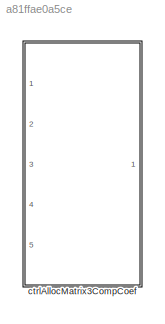
MODEL slx_a81ffae0a5ce
KIND library
CONFIG AbsTol = auto
CONFIG EnableMultiTasking = off
CONFIG FixedStep = auto
CONFIG MaxStep = auto
CONFIG MinStep = auto
CONFIG RelTol = 1e-3
CONFIG SampleTimeConstraint = Unconstrained
CONFIG SolverName = VariableStepAuto
CONFIG StartTime = 0.0
CONFIG StopTime = 10.0
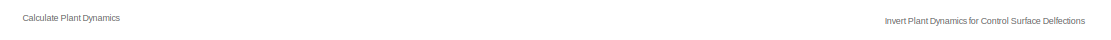
[diagram: ctrlAllocMatrix3CompCoef - part 1/2, top center region]
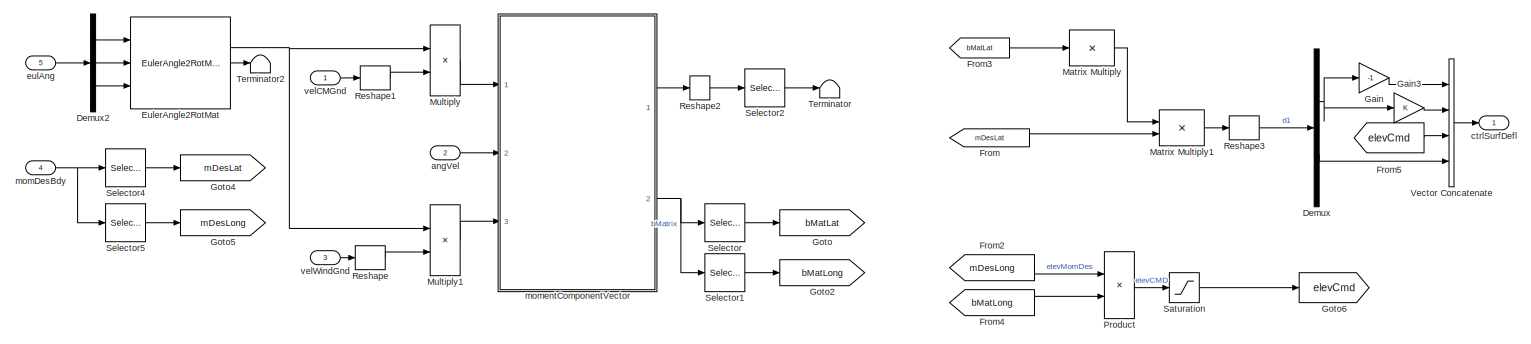
[diagram: ctrlAllocMatrix3CompCoef - part 2/2, most of the canvas]
BLOCK [SubSystem] ctrlAllocMatrix3CompCoef
  MinAlgLoopOccurrences = on
  Ports = [5, 1]
  RequestExecContextInheritance = off
BLOCK [Demux] ctrlAllocMatrix3CompCoef/Demux
  Outputs = 2
  Ports = [1, 2]
BLOCK [Demux] ctrlAllocMatrix3CompCoef/Demux2
  Outputs = 3
  Ports = [1, 3]
BLOCK [Reference] ctrlAllocMatrix3CompCoef/EulerAngle2RotMat  REF=eulAng2RotMat_ul/EulerAngle2RotMat
  Ports = [3, 2]
  SourceBlock = eulAng2RotMat_ul/EulerAngle2RotMat
  SourceType = SubSystem
BLOCK [From] ctrlAllocMatrix3CompCoef/From
  GotoTag = mDesLat
BLOCK [From] ctrlAllocMatrix3CompCoef/From2
  GotoTag = mDesLong
BLOCK [From] ctrlAllocMatrix3CompCoef/From3
  GotoTag = bMatLat
BLOCK [From] ctrlAllocMatrix3CompCoef/From4
  GotoTag = bMatLong
BLOCK [From] ctrlAllocMatrix3CompCoef/From5
  GotoTag = elevCmd
BLOCK [Gain] ctrlAllocMatrix3CompCoef/Gain
  Gain = -1
BLOCK [Gain] ctrlAllocMatrix3CompCoef/Gain3
BLOCK [Goto] ctrlAllocMatrix3CompCoef/Goto
  GotoTag = bMatLat
BLOCK [Goto] ctrlAllocMatrix3CompCoef/Goto2
  GotoTag = bMatLong
BLOCK [Goto] ctrlAllocMatrix3CompCoef/Goto4
  GotoTag = mDesLat
BLOCK [Goto] ctrlAllocMatrix3CompCoef/Goto5
  GotoTag = mDesLong
BLOCK [Goto] ctrlAllocMatrix3CompCoef/Goto6
  GotoTag = elevCmd
BLOCK [Product] ctrlAllocMatrix3CompCoef/Matrix Multiply
  Inputs = /
  Multiplication = Matrix(*)
  Ports = [1, 1]
BLOCK [Product] ctrlAllocMatrix3CompCoef/Matrix Multiply1
  Multiplication = Matrix(*)
  Ports = [2, 1]
BLOCK [Product] ctrlAllocMatrix3CompCoef/Multiply
  Multiplication = Matrix(*)
  Ports = [2, 1]
BLOCK [Product] ctrlAllocMatrix3CompCoef/Multiply1
  Multiplication = Matrix(*)
  Ports = [2, 1]
BLOCK [Product] ctrlAllocMatrix3CompCoef/Product
  Inputs = */
  Ports = [2, 1]
BLOCK [Reshape] ctrlAllocMatrix3CompCoef/Reshape
  OutputDimensionality = Column vector (2-D)
  Ports = [1, 1]
BLOCK [Reshape] ctrlAllocMatrix3CompCoef/Reshape1
  OutputDimensionality = Column vector (2-D)
  Ports = [1, 1]
BLOCK [Reshape] ctrlAllocMatrix3CompCoef/Reshape2
  OutputDimensionality = Column vector (2-D)
  Ports = [1, 1]
BLOCK [Reshape] ctrlAllocMatrix3CompCoef/Reshape3
  Ports = [1, 1]
BLOCK [Saturate] ctrlAllocMatrix3CompCoef/Saturation
  LowerLimit = -30
  UpperLimit = 30
BLOCK [Selector] ctrlAllocMatrix3CompCoef/Selector
  IndexOptions = Index vector (dialog),Index vector (dialog)
  Indices = [1 3],[1 3]
  InputPortWidth = 3
  NumberOfDimensions = 2
  OutputSizes = 1,1
  Ports = [1, 1]
BLOCK [Selector] ctrlAllocMatrix3CompCoef/Selector1
  IndexOptions = Index vector (dialog),Index vector (dialog)
  Indices = 2,2
  InputPortWidth = 3
  NumberOfDimensions = 2
  OutputSizes = 1,1
  Ports = [1, 1]
BLOCK [Selector] ctrlAllocMatrix3CompCoef/Selector2
  IndexOptions = Index vector (dialog)
  Indices = [1 3]
  InputPortWidth = 3
  OutputSizes = 1
  Ports = [1, 1]
BLOCK [Selector] ctrlAllocMatrix3CompCoef/Selector4
  IndexOptions = Index vector (dialog)
  Indices = [1 3]
  InputPortWidth = 3
  OutputSizes = 1
  Ports = [1, 1]
BLOCK [Selector] ctrlAllocMatrix3CompCoef/Selector5
  IndexOptions = Index vector (dialog)
  Indices = 2
  InputPortWidth = 3
  OutputSizes = 1
  Ports = [1, 1]
BLOCK [Terminator] ctrlAllocMatrix3CompCoef/Terminator
BLOCK [Terminator] ctrlAllocMatrix3CompCoef/Terminator2
BLOCK [Concatenate] ctrlAllocMatrix3CompCoef/Vector Concatenate
  NumInputs = 4
  Ports = [4, 1]
BLOCK [Inport] ctrlAllocMatrix3CompCoef/angVel
  Port = 2
BLOCK [Outport] ctrlAllocMatrix3CompCoef/ctrlSurfDefl
  VectorParamsAs1DForOutWhenUnconnected = off
BLOCK [Inport] ctrlAllocMatrix3CompCoef/eulAng
  Port = 5
BLOCK [Inport] ctrlAllocMatrix3CompCoef/momDesBdy
  Port = 4
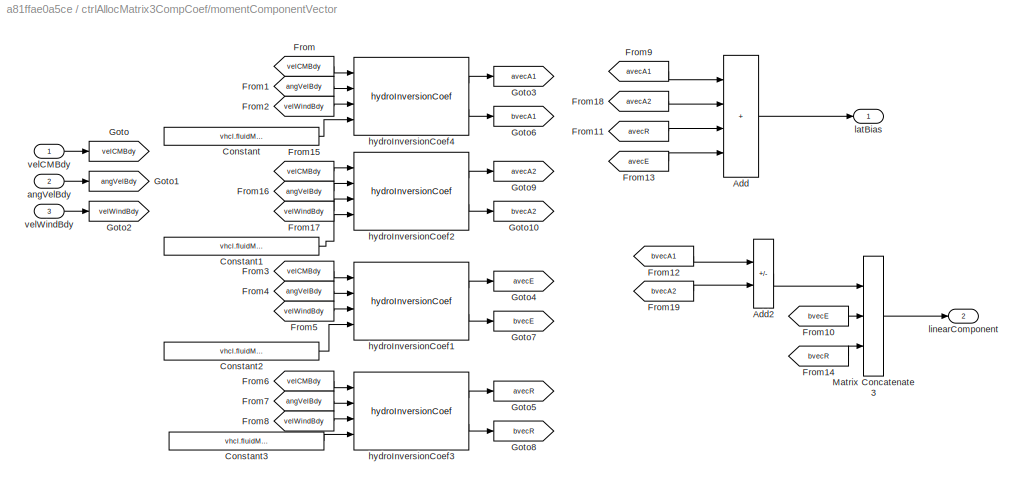
BLOCK [SubSystem] ctrlAllocMatrix3CompCoef/momentComponentVector
  Ports = [3, 2]
  RequestExecContextInheritance = off
BLOCK [Sum] ctrlAllocMatrix3CompCoef/momentComponentVector/Add
  IconShape = rectangular
  Inputs = ++++
  Ports = [4, 1]
BLOCK [Sum] ctrlAllocMatrix3CompCoef/momentComponentVector/Add2
  IconShape = rectangular
  Inputs = -+
  Ports = [2, 1]
BLOCK [Constant] ctrlAllocMatrix3CompCoef/momentComponentVector/Constant
  Value = vhcl.fluidMomentArms.Value(:,1)
BLOCK [Constant] ctrlAllocMatrix3CompCoef/momentComponentVector/Constant1
  Value = vhcl.fluidMomentArms.Value(:,2)
BLOCK [Constant] ctrlAllocMatrix3CompCoef/momentComponentVector/Constant2
  Value = vhcl.fluidMomentArms.Value(:,3)
BLOCK [Constant] ctrlAllocMatrix3CompCoef/momentComponentVector/Constant3
  Value = vhcl.fluidMomentArms.Value(:,4)
BLOCK [From] ctrlAllocMatrix3CompCoef/momentComponentVector/From
  GotoTag = velCMBdy
BLOCK [From] ctrlAllocMatrix3CompCoef/momentComponentVector/From1
  GotoTag = angVelBdy
BLOCK [From] ctrlAllocMatrix3CompCoef/momentComponentVector/From10
  GotoTag = bvecE
BLOCK [From] ctrlAllocMatrix3CompCoef/momentComponentVector/From11
  GotoTag = avecR
BLOCK [From] ctrlAllocMatrix3CompCoef/momentComponentVector/From12
  GotoTag = bvecA1
BLOCK [From] ctrlAllocMatrix3CompCoef/momentComponentVector/From13
  GotoTag = avecE
BLOCK [From] ctrlAllocMatrix3CompCoef/momentComponentVector/From14
  GotoTag = bvecR
BLOCK [From] ctrlAllocMatrix3CompCoef/momentComponentVector/From15
  GotoTag = velCMBdy
BLOCK [From] ctrlAllocMatrix3CompCoef/momentComponentVector/From16
  GotoTag = angVelBdy
BLOCK [From] ctrlAllocMatrix3CompCoef/momentComponentVector/From17
  GotoTag = velWindBdy
BLOCK [From] ctrlAllocMatrix3CompCoef/momentComponentVector/From18
  GotoTag = avecA2
BLOCK [From] ctrlAllocMatrix3CompCoef/momentComponentVector/From19
  GotoTag = bvecA2
BLOCK [From] ctrlAllocMatrix3CompCoef/momentComponentVector/From2
  GotoTag = velWindBdy
BLOCK [From] ctrlAllocMatrix3CompCoef/momentComponentVector/From3
  GotoTag = velCMBdy
BLOCK [From] ctrlAllocMatrix3CompCoef/momentComponentVector/From4
  GotoTag = angVelBdy
BLOCK [From] ctrlAllocMatrix3CompCoef/momentComponentVector/From5
  GotoTag = velWindBdy
BLOCK [From] ctrlAllocMatrix3CompCoef/momentComponentVector/From6
  GotoTag = velCMBdy
BLOCK [From] ctrlAllocMatrix3CompCoef/momentComponentVector/From7
  GotoTag = angVelBdy
BLOCK [From] ctrlAllocMatrix3CompCoef/momentComponentVector/From8
  GotoTag = velWindBdy
BLOCK [From] ctrlAllocMatrix3CompCoef/momentComponentVector/From9
  GotoTag = avecA1
BLOCK [Goto] ctrlAllocMatrix3CompCoef/momentComponentVector/Goto
  GotoTag = velCMBdy
BLOCK [Goto] ctrlAllocMatrix3CompCoef/momentComponentVector/Goto1
  GotoTag = angVelBdy
BLOCK [Goto] ctrlAllocMatrix3CompCoef/momentComponentVector/Goto10
  GotoTag = bvecA2
BLOCK [Goto] ctrlAllocMatrix3CompCoef/momentComponentVector/Goto2
  GotoTag = velWindBdy
BLOCK [Goto] ctrlAllocMatrix3CompCoef/momentComponentVector/Goto3
  GotoTag = avecA1
BLOCK [Goto] ctrlAllocMatrix3CompCoef/momentComponentVector/Goto4
  GotoTag = avecE
BLOCK [Goto] ctrlAllocMatrix3CompCoef/momentComponentVector/Goto5
  GotoTag = avecR
BLOCK [Goto] ctrlAllocMatrix3CompCoef/momentComponentVector/Goto6
  GotoTag = bvecA1
BLOCK [Goto] ctrlAllocMatrix3CompCoef/momentComponentVector/Goto7
  GotoTag = bvecE
BLOCK [Goto] ctrlAllocMatrix3CompCoef/momentComponentVector/Goto8
  GotoTag = bvecR
BLOCK [Goto] ctrlAllocMatrix3CompCoef/momentComponentVector/Goto9
  GotoTag = avecA2
BLOCK [Concatenate] ctrlAllocMatrix3CompCoef/momentComponentVector/Matrix Concatenate3
  ConcatenateDimension = 2
  Mode = Multidimensional array
  NumInputs = 3
  Ports = [3, 1]
BLOCK [Inport] ctrlAllocMatrix3CompCoef/momentComponentVector/angVelBdy
  Port = 2
BLOCK [Reference] ctrlAllocMatrix3CompCoef/momentComponentVector/hydroInversionCoef1  REF=hydroInversionCoef_cl/hydroInversionCoef
  Ports = [4, 2]
  SourceBlock = hydroInversionCoef_cl/hydroInversionCoef
BLOCK [Reference] ctrlAllocMatrix3CompCoef/momentComponentVector/hydroInversionCoef2  REF=hydroInversionCoef_cl/hydroInversionCoef
  Ports = [4, 2]
  SourceBlock = hydroInversionCoef_cl/hydroInversionCoef
BLOCK [Reference] ctrlAllocMatrix3CompCoef/momentComponentVector/hydroInversionCoef3  REF=hydroInversionCoef_cl/hydroInversionCoef
  Ports = [4, 2]
  SourceBlock = hydroInversionCoef_cl/hydroInversionCoef
BLOCK [Reference] ctrlAllocMatrix3CompCoef/momentComponentVector/hydroInversionCoef4  REF=hydroInversionCoef_cl/hydroInversionCoef
  Ports = [4, 2]
  SourceBlock = hydroInversionCoef_cl/hydroInversionCoef
BLOCK [Outport] ctrlAllocMatrix3CompCoef/momentComponentVector/latBias
BLOCK [Outport] ctrlAllocMatrix3CompCoef/momentComponentVector/linearComponent
  Port = 2
BLOCK [Inport] ctrlAllocMatrix3CompCoef/momentComponentVector/velCMBdy
BLOCK [Inport] ctrlAllocMatrix3CompCoef/momentComponentVector/velWindBdy
  Port = 3
BLOCK [Inport] ctrlAllocMatrix3CompCoef/velCMGnd
BLOCK [Inport] ctrlAllocMatrix3CompCoef/velWindGnd
  Port = 3
ANNOTATION ctrlAllocMatrix3CompCoef: Calculate Plant Dynamics
ANNOTATION ctrlAllocMatrix3CompCoef: Invert Plant Dynamics for Control Surface Delfections
LINE ctrlAllocMatrix3CompCoef/Demux2:1 -> ctrlAllocMatrix3CompCoef/EulerAngle2RotMat:1
LINE ctrlAllocMatrix3CompCoef/Demux2:2 -> ctrlAllocMatrix3CompCoef/EulerAngle2RotMat:2
LINE ctrlAllocMatrix3CompCoef/Demux2:3 -> ctrlAllocMatrix3CompCoef/EulerAngle2RotMat:3
NET ctrlAllocMatrix3CompCoef/Demux:1 -> ctrlAllocMatrix3CompCoef/Gain3:1, ctrlAllocMatrix3CompCoef/Gain:1
LINE ctrlAllocMatrix3CompCoef/Demux:2 -> ctrlAllocMatrix3CompCoef/Vector Concatenate:4
NET ctrlAllocMatrix3CompCoef/EulerAngle2RotMat:1 -> ctrlAllocMatrix3CompCoef/Multiply1:1, ctrlAllocMatrix3CompCoef/Multiply:1
LINE ctrlAllocMatrix3CompCoef/EulerAngle2RotMat:2 -> ctrlAllocMatrix3CompCoef/Terminator2:1
LINE ctrlAllocMatrix3CompCoef/From2:1 -> ctrlAllocMatrix3CompCoef/Product:1
LINE ctrlAllocMatrix3CompCoef/From3:1 -> ctrlAllocMatrix3CompCoef/Matrix Multiply:1
LINE ctrlAllocMatrix3CompCoef/From4:1 -> ctrlAllocMatrix3CompCoef/Product:2
LINE ctrlAllocMatrix3CompCoef/From5:1 -> ctrlAllocMatrix3CompCoef/Vector Concatenate:3
LINE ctrlAllocMatrix3CompCoef/From:1 -> ctrlAllocMatrix3CompCoef/Matrix Multiply1:2
LINE ctrlAllocMatrix3CompCoef/Gain3:1 -> ctrlAllocMatrix3CompCoef/Vector Concatenate:2
LINE ctrlAllocMatrix3CompCoef/Gain:1 -> ctrlAllocMatrix3CompCoef/Vector Concatenate:1
LINE ctrlAllocMatrix3CompCoef/Matrix Multiply1:1 -> ctrlAllocMatrix3CompCoef/Reshape3:1
LINE ctrlAllocMatrix3CompCoef/Matrix Multiply:1 -> ctrlAllocMatrix3CompCoef/Matrix Multiply1:1
LINE ctrlAllocMatrix3CompCoef/Multiply1:1 -> ctrlAllocMatrix3CompCoef/momentComponentVector:3
LINE ctrlAllocMatrix3CompCoef/Multiply:1 -> ctrlAllocMatrix3CompCoef/momentComponentVector:1
LINE ctrlAllocMatrix3CompCoef/Product:1 -> ctrlAllocMatrix3CompCoef/Saturation:1
LINE ctrlAllocMatrix3CompCoef/Reshape1:1 -> ctrlAllocMatrix3CompCoef/Multiply:2
LINE ctrlAllocMatrix3CompCoef/Reshape2:1 -> ctrlAllocMatrix3CompCoef/Selector2:1
LINE ctrlAllocMatrix3CompCoef/Reshape3:1 -> ctrlAllocMatrix3CompCoef/Demux:1
LINE ctrlAllocMatrix3CompCoef/Reshape:1 -> ctrlAllocMatrix3CompCoef/Multiply1:2
LINE ctrlAllocMatrix3CompCoef/Saturation:1 -> ctrlAllocMatrix3CompCoef/Goto6:1
LINE ctrlAllocMatrix3CompCoef/Selector1:1 -> ctrlAllocMatrix3CompCoef/Goto2:1
LINE ctrlAllocMatrix3CompCoef/Selector2:1 -> ctrlAllocMatrix3CompCoef/Terminator:1
LINE ctrlAllocMatrix3CompCoef/Selector4:1 -> ctrlAllocMatrix3CompCoef/Goto4:1
LINE ctrlAllocMatrix3CompCoef/Selector5:1 -> ctrlAllocMatrix3CompCoef/Goto5:1
LINE ctrlAllocMatrix3CompCoef/Selector:1 -> ctrlAllocMatrix3CompCoef/Goto:1
LINE ctrlAllocMatrix3CompCoef/Vector Concatenate:1 -> ctrlAllocMatrix3CompCoef/ctrlSurfDefl:1
LINE ctrlAllocMatrix3CompCoef/angVel:1 -> ctrlAllocMatrix3CompCoef/momentComponentVector:2
LINE ctrlAllocMatrix3CompCoef/eulAng:1 -> ctrlAllocMatrix3CompCoef/Demux2:1
NET ctrlAllocMatrix3CompCoef/momDesBdy:1 -> ctrlAllocMatrix3CompCoef/Selector4:1, ctrlAllocMatrix3CompCoef/Selector5:1
LINE ctrlAllocMatrix3CompCoef/momentComponentVector/Add2:1 -> ctrlAllocMatrix3CompCoef/momentComponentVector/Matrix Concatenate3:1
LINE ctrlAllocMatrix3CompCoef/momentComponentVector/Add:1 -> ctrlAllocMatrix3CompCoef/momentComponentVector/latBias:1
LINE ctrlAllocMatrix3CompCoef/momentComponentVector/Constant1:1 -> ctrlAllocMatrix3CompCoef/momentComponentVector/hydroInversionCoef2:4
LINE ctrlAllocMatrix3CompCoef/momentComponentVector/Constant2:1 -> ctrlAllocMatrix3CompCoef/momentComponentVector/hydroInversionCoef1:4
LINE ctrlAllocMatrix3CompCoef/momentComponentVector/Constant3:1 -> ctrlAllocMatrix3CompCoef/momentComponentVector/hydroInversionCoef3:4
LINE ctrlAllocMatrix3CompCoef/momentComponentVector/Constant:1 -> ctrlAllocMatrix3CompCoef/momentComponentVector/hydroInversionCoef4:4
LINE ctrlAllocMatrix3CompCoef/momentComponentVector/From10:1 -> ctrlAllocMatrix3CompCoef/momentComponentVector/Matrix Concatenate3:2
LINE ctrlAllocMatrix3CompCoef/momentComponentVector/From11:1 -> ctrlAllocMatrix3CompCoef/momentComponentVector/Add:3
LINE ctrlAllocMatrix3CompCoef/momentComponentVector/From12:1 -> ctrlAllocMatrix3CompCoef/momentComponentVector/Add2:1
LINE ctrlAllocMatrix3CompCoef/momentComponentVector/From13:1 -> ctrlAllocMatrix3CompCoef/momentComponentVector/Add:4
LINE ctrlAllocMatrix3CompCoef/momentComponentVector/From14:1 -> ctrlAllocMatrix3CompCoef/momentComponentVector/Matrix Concatenate3:3
LINE ctrlAllocMatrix3CompCoef/momentComponentVector/From15:1 -> ctrlAllocMatrix3CompCoef/momentComponentVector/hydroInversionCoef2:1
LINE ctrlAllocMatrix3CompCoef/momentComponentVector/From16:1 -> ctrlAllocMatrix3CompCoef/momentComponentVector/hydroInversionCoef2:2
LINE ctrlAllocMatrix3CompCoef/momentComponentVector/From17:1 -> ctrlAllocMatrix3CompCoef/momentComponentVector/hydroInversionCoef2:3
LINE ctrlAllocMatrix3CompCoef/momentComponentVector/From18:1 -> ctrlAllocMatrix3CompCoef/momentComponentVector/Add:2
LINE ctrlAllocMatrix3CompCoef/momentComponentVector/From19:1 -> ctrlAllocMatrix3CompCoef/momentComponentVector/Add2:2
LINE ctrlAllocMatrix3CompCoef/momentComponentVector/From1:1 -> ctrlAllocMatrix3CompCoef/momentComponentVector/hydroInversionCoef4:2
LINE ctrlAllocMatrix3CompCoef/momentComponentVector/From2:1 -> ctrlAllocMatrix3CompCoef/momentComponentVector/hydroInversionCoef4:3
LINE ctrlAllocMatrix3CompCoef/momentComponentVector/From3:1 -> ctrlAllocMatrix3CompCoef/momentComponentVector/hydroInversionCoef1:1
LINE ctrlAllocMatrix3CompCoef/momentComponentVector/From4:1 -> ctrlAllocMatrix3CompCoef/momentComponentVector/hydroInversionCoef1:2
LINE ctrlAllocMatrix3CompCoef/momentComponentVector/From5:1 -> ctrlAllocMatrix3CompCoef/momentComponentVector/hydroInversionCoef1:3
LINE ctrlAllocMatrix3CompCoef/momentComponentVector/From6:1 -> ctrlAllocMatrix3CompCoef/momentComponentVector/hydroInversionCoef3:1
LINE ctrlAllocMatrix3CompCoef/momentComponentVector/From7:1 -> ctrlAllocMatrix3CompCoef/momentComponentVector/hydroInversionCoef3:2
LINE ctrlAllocMatrix3CompCoef/momentComponentVector/From8:1 -> ctrlAllocMatrix3CompCoef/momentComponentVector/hydroInversionCoef3:3
LINE ctrlAllocMatrix3CompCoef/momentComponentVector/From9:1 -> ctrlAllocMatrix3CompCoef/momentComponentVector/Add:1
LINE ctrlAllocMatrix3CompCoef/momentComponentVector/From:1 -> ctrlAllocMatrix3CompCoef/momentComponentVector/hydroInversionCoef4:1
LINE ctrlAllocMatrix3CompCoef/momentComponentVector/Matrix Concatenate3:1 -> ctrlAllocMatrix3CompCoef/momentComponentVector/linearComponent:1
LINE ctrlAllocMatrix3CompCoef/momentComponentVector/angVelBdy:1 -> ctrlAllocMatrix3CompCoef/momentComponentVector/Goto1:1
LINE ctrlAllocMatrix3CompCoef/momentComponentVector/hydroInversionCoef1:1 -> ctrlAllocMatrix3CompCoef/momentComponentVector/Goto4:1
LINE ctrlAllocMatrix3CompCoef/momentComponentVector/hydroInversionCoef1:2 -> ctrlAllocMatrix3CompCoef/momentComponentVector/Goto7:1
LINE ctrlAllocMatrix3CompCoef/momentComponentVector/hydroInversionCoef2:1 -> ctrlAllocMatrix3CompCoef/momentComponentVector/Goto9:1
LINE ctrlAllocMatrix3CompCoef/momentComponentVector/hydroInversionCoef2:2 -> ctrlAllocMatrix3CompCoef/momentComponentVector/Goto10:1
LINE ctrlAllocMatrix3CompCoef/momentComponentVector/hydroInversionCoef3:1 -> ctrlAllocMatrix3CompCoef/momentComponentVector/Goto5:1
LINE ctrlAllocMatrix3CompCoef/momentComponentVector/hydroInversionCoef3:2 -> ctrlAllocMatrix3CompCoef/momentComponentVector/Goto8:1
LINE ctrlAllocMatrix3CompCoef/momentComponentVector/hydroInversionCoef4:1 -> ctrlAllocMatrix3CompCoef/momentComponentVector/Goto3:1
LINE ctrlAllocMatrix3CompCoef/momentComponentVector/hydroInversionCoef4:2 -> ctrlAllocMatrix3CompCoef/momentComponentVector/Goto6:1
LINE ctrlAllocMatrix3CompCoef/momentComponentVector/velCMBdy:1 -> ctrlAllocMatrix3CompCoef/momentComponentVector/Goto:1
LINE ctrlAllocMatrix3CompCoef/momentComponentVector/velWindBdy:1 -> ctrlAllocMatrix3CompCoef/momentComponentVector/Goto2:1
LINE ctrlAllocMatrix3CompCoef/momentComponentVector:1 -> ctrlAllocMatrix3CompCoef/Reshape2:1
NET ctrlAllocMatrix3CompCoef/momentComponentVector:2 -> ctrlAllocMatrix3CompCoef/Selector1:1, ctrlAllocMatrix3CompCoef/Selector:1
LINE ctrlAllocMatrix3CompCoef/velCMGnd:1 -> ctrlAllocMatrix3CompCoef/Reshape1:1
LINE ctrlAllocMatrix3CompCoef/velWindGnd:1 -> ctrlAllocMatrix3CompCoef/Reshape:1
note: NET lines group one-source signal fan-out (src -> all destinations, sorted); 1:1 wires keep LINE
